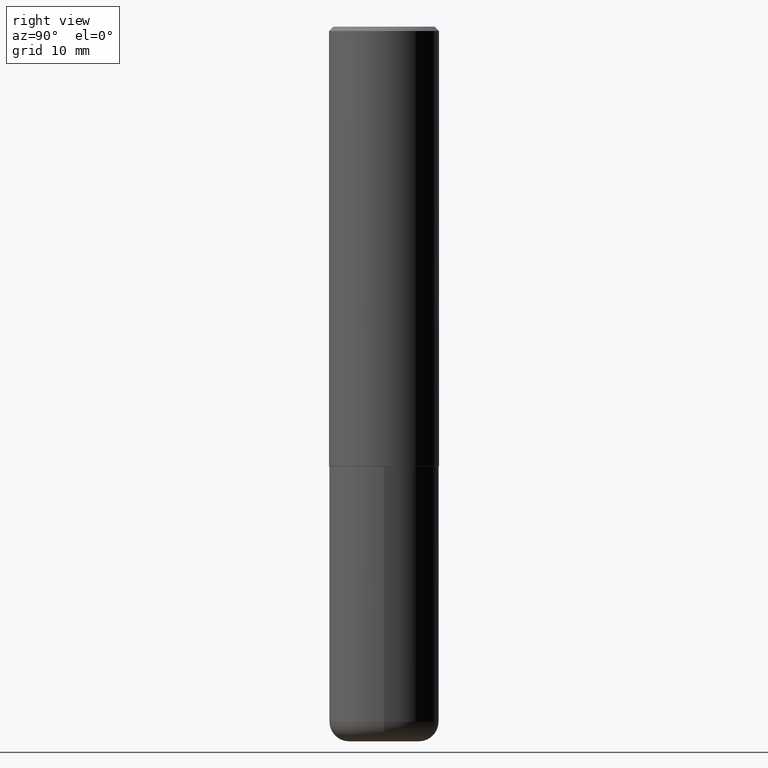
[diagram: clean part render]
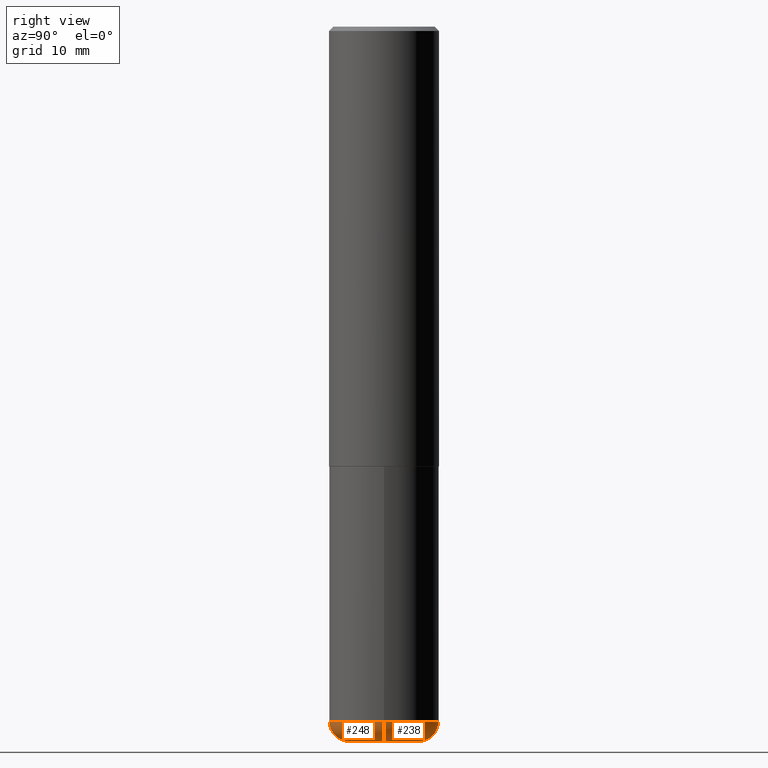
[diagram: same view with one multi-face feature highlighted, each face labeled with its STEP entity id]
A machine part, right view. The highlighted faces form ONE feature: a constant-radius fillet chain: 2 tangent blend faces with common blend radius 2.286 mm. The faces share edges in the B-rep.
Their STEP definitions:
[1] entity #248 (Torus):
#17 = VERTEX_POINT ( 'NONE', #288 ) ;
#27 = CARTESIAN_POINT ( 'NONE',  ( 0.1600000000000000033, -1.246458837967002615E-14, -3.249999999999999556 ) ) ;
#38 = CIRCLE ( 'NONE', #387, 0.08999999999999964972 ) ;
#39 = EDGE_CURVE ( 'NONE', #344, #151, #38, .T. ) ;
#40 = DIRECTION ( 'NONE',  ( 7.105427357601001859E-15, 1.000000000000000000, -3.491481338843145583E-15 ) ) ;
#52 = AXIS2_PLACEMENT_3D ( 'NONE', #362, #142, #325 ) ;
#56 = ORIENTED_EDGE ( 'NONE', *, *, #203, .F. ) ;
#63 = ORIENTED_EDGE ( 'NONE', *, *, #415, .F. ) ;
#72 = DIRECTION ( 'NONE',  ( 1.000000000000000000, -6.982962677686273810E-15, 0.000000000000000000 ) ) ;
#74 = DIRECTION ( 'NONE',  ( 1.000000000000000000, -6.982962677686271444E-15, 0.000000000000000000 ) ) ;
#76 = TOROIDAL_SURFACE ( 'NONE', #163, 0.1600000000000000033, 0.08999999999999967748 ) ;
#89 = ORIENTED_EDGE ( 'NONE', *, *, #282, .T. ) ;
#99 = CARTESIAN_POINT ( 'NONE',  ( 0.1600000000000000033, -1.215035505917414131E-14, -3.160000000000000142 ) ) ;
#102 = DIRECTION ( 'NONE',  ( 1.000000000000000000, -6.982962677686265133E-15, 4.883557194083112340E-29 ) ) ;
#104 = CARTESIAN_POINT ( 'NONE',  ( 0.2499999999999998612, -1.277882170016590626E-14, -3.160000000000000142 ) ) ;
#136 = FACE_OUTER_BOUND ( 'NONE', #143, .T. ) ;
#142 = DIRECTION ( 'NONE',  ( -2.445468806185136597E-29, 3.491481338843145583E-15, 1.000000000000000000 ) ) ;
#143 = EDGE_LOOP ( 'NONE', ( #56, #89, #300, #63 ) ) ;
#151 = VERTEX_POINT ( 'NONE', #104 ) ;
#161 = CARTESIAN_POINT ( 'NONE',  ( 7.727681427545032274E-29, -1.103308103074433958E-14, -3.160000000000000142 ) ) ;
#163 = AXIS2_PLACEMENT_3D ( 'NONE', #161, #267, #102 ) ;
#178 = CIRCLE ( 'NONE', #412, 0.08999999999999964972 ) ;
#180 = CIRCLE ( 'NONE', #303, 0.1600000000000000033 ) ;
#195 = CARTESIAN_POINT ( 'NONE',  ( -0.1600000000000000033, -9.733585082684075330E-15, -3.249999999999999556 ) ) ;
#203 = EDGE_CURVE ( 'NONE', #217, #17, #178, .T. ) ;
#217 = VERTEX_POINT ( 'NONE', #195 ) ;
#248 = ADVANCED_FACE ( 'NONE', ( #136 ), #76, .T. ) ;
#264 = CARTESIAN_POINT ( 'NONE',  ( 7.947773620101692818E-29, -1.134731435124022127E-14, -3.249999999999999556 ) ) ;
#267 = DIRECTION ( 'NONE',  ( -2.445468806185136597E-29, 3.491481338843145583E-15, 1.000000000000000000 ) ) ;
#282 = EDGE_CURVE ( 'NONE', #217, #344, #180, .T. ) ;
#288 = CARTESIAN_POINT ( 'NONE',  ( -0.2499999999999998612, -9.256724191344090697E-15, -3.160000000000000142 ) ) ;
#292 = CARTESIAN_POINT ( 'NONE',  ( -0.1600000000000000033, -9.896212653528179854E-15, -3.160000000000000142 ) ) ;
#300 = ORIENTED_EDGE ( 'NONE', *, *, #39, .T. ) ;
#303 = AXIS2_PLACEMENT_3D ( 'NONE', #264, #354, #74 ) ;
#325 = DIRECTION ( 'NONE',  ( 1.000000000000000000, -6.982962677686269077E-15, 0.000000000000000000 ) ) ;
#344 = VERTEX_POINT ( 'NONE', #27 ) ;
#354 = DIRECTION ( 'NONE',  ( -2.445468806185136597E-29, 3.491481338843145583E-15, 1.000000000000000000 ) ) ;
#356 = DIRECTION ( 'NONE',  ( -1.000000000000000000, 7.105427357600996337E-15, 0.000000000000000000 ) ) ;
#357 = DIRECTION ( 'NONE',  ( -6.982962677686266711E-15, -1.000000000000000000, 3.491481338843145583E-15 ) ) ;
#362 = CARTESIAN_POINT ( 'NONE',  ( 7.727681427545032274E-29, -1.103308103074433958E-14, -3.160000000000000142 ) ) ;
#373 = CIRCLE ( 'NONE', #52, 0.2500000000000000555 ) ;
#387 = AXIS2_PLACEMENT_3D ( 'NONE', #99, #357, #72 ) ;
#412 = AXIS2_PLACEMENT_3D ( 'NONE', #292, #40, #356 ) ;
#415 = EDGE_CURVE ( 'NONE', #17, #151, #373, .T. ) ;
[2] entity #238 (Torus):
#2 = DIRECTION ( 'NONE',  ( 1.000000000000000000, -6.982962677686265133E-15, 4.883557194083112340E-29 ) ) ;
#17 = VERTEX_POINT ( 'NONE', #288 ) ;
#27 = CARTESIAN_POINT ( 'NONE',  ( 0.1600000000000000033, -1.246458837967002615E-14, -3.249999999999999556 ) ) ;
#35 = DIRECTION ( 'NONE',  ( -2.445468806185136597E-29, 3.491481338843145583E-15, 1.000000000000000000 ) ) ;
#38 = CIRCLE ( 'NONE', #387, 0.08999999999999964972 ) ;
#39 = EDGE_CURVE ( 'NONE', #344, #151, #38, .T. ) ;
#40 = DIRECTION ( 'NONE',  ( 7.105427357601001859E-15, 1.000000000000000000, -3.491481338843145583E-15 ) ) ;
#60 = CIRCLE ( 'NONE', #294, 0.1600000000000000033 ) ;
#72 = DIRECTION ( 'NONE',  ( 1.000000000000000000, -6.982962677686273810E-15, 0.000000000000000000 ) ) ;
#99 = CARTESIAN_POINT ( 'NONE',  ( 0.1600000000000000033, -1.215035505917414131E-14, -3.160000000000000142 ) ) ;
#104 = CARTESIAN_POINT ( 'NONE',  ( 0.2499999999999998612, -1.277882170016590626E-14, -3.160000000000000142 ) ) ;
#105 = CARTESIAN_POINT ( 'NONE',  ( 7.947773620101692818E-29, -1.134731435124022127E-14, -3.249999999999999556 ) ) ;
#110 = CIRCLE ( 'NONE', #193, 0.2500000000000000555 ) ;
#129 = TOROIDAL_SURFACE ( 'NONE', #369, 0.1600000000000000033, 0.08999999999999967748 ) ;
#132 = DIRECTION ( 'NONE',  ( 1.000000000000000000, -6.982962677686271444E-15, 0.000000000000000000 ) ) ;
#151 = VERTEX_POINT ( 'NONE', #104 ) ;
#171 = CARTESIAN_POINT ( 'NONE',  ( 7.727681427545032274E-29, -1.103308103074433958E-14, -3.160000000000000142 ) ) ;
#173 = EDGE_LOOP ( 'NONE', ( #275, #279, #240, #304 ) ) ;
#178 = CIRCLE ( 'NONE', #412, 0.08999999999999964972 ) ;
#193 = AXIS2_PLACEMENT_3D ( 'NONE', #171, #270, #296 ) ;
#195 = CARTESIAN_POINT ( 'NONE',  ( -0.1600000000000000033, -9.733585082684075330E-15, -3.249999999999999556 ) ) ;
#200 = DIRECTION ( 'NONE',  ( -2.445468806185136597E-29, 3.491481338843145583E-15, 1.000000000000000000 ) ) ;
#203 = EDGE_CURVE ( 'NONE', #217, #17, #178, .T. ) ;
#217 = VERTEX_POINT ( 'NONE', #195 ) ;
#238 = ADVANCED_FACE ( 'NONE', ( #262 ), #129, .T. ) ;
#240 = ORIENTED_EDGE ( 'NONE', *, *, #416, .F. ) ;
#247 = EDGE_CURVE ( 'NONE', #344, #217, #60, .T. ) ;
#262 = FACE_OUTER_BOUND ( 'NONE', #173, .T. ) ;
#270 = DIRECTION ( 'NONE',  ( -2.445468806185136597E-29, 3.491481338843145583E-15, 1.000000000000000000 ) ) ;
#275 = ORIENTED_EDGE ( 'NONE', *, *, #247, .T. ) ;
#279 = ORIENTED_EDGE ( 'NONE', *, *, #203, .T. ) ;
#288 = CARTESIAN_POINT ( 'NONE',  ( -0.2499999999999998612, -9.256724191344090697E-15, -3.160000000000000142 ) ) ;
#292 = CARTESIAN_POINT ( 'NONE',  ( -0.1600000000000000033, -9.896212653528179854E-15, -3.160000000000000142 ) ) ;
#294 = AXIS2_PLACEMENT_3D ( 'NONE', #105, #200, #132 ) ;
#296 = DIRECTION ( 'NONE',  ( 1.000000000000000000, -6.982962677686269077E-15, 0.000000000000000000 ) ) ;
#304 = ORIENTED_EDGE ( 'NONE', *, *, #39, .F. ) ;
#317 = CARTESIAN_POINT ( 'NONE',  ( 7.727681427545032274E-29, -1.103308103074433958E-14, -3.160000000000000142 ) ) ;
#344 = VERTEX_POINT ( 'NONE', #27 ) ;
#356 = DIRECTION ( 'NONE',  ( -1.000000000000000000, 7.105427357600996337E-15, 0.000000000000000000 ) ) ;
#357 = DIRECTION ( 'NONE',  ( -6.982962677686266711E-15, -1.000000000000000000, 3.491481338843145583E-15 ) ) ;
#369 = AXIS2_PLACEMENT_3D ( 'NONE', #317, #35, #2 ) ;
#387 = AXIS2_PLACEMENT_3D ( 'NONE', #99, #357, #72 ) ;
#412 = AXIS2_PLACEMENT_3D ( 'NONE', #292, #40, #356 ) ;
#416 = EDGE_CURVE ( 'NONE', #151, #17, #110, .T. ) ;